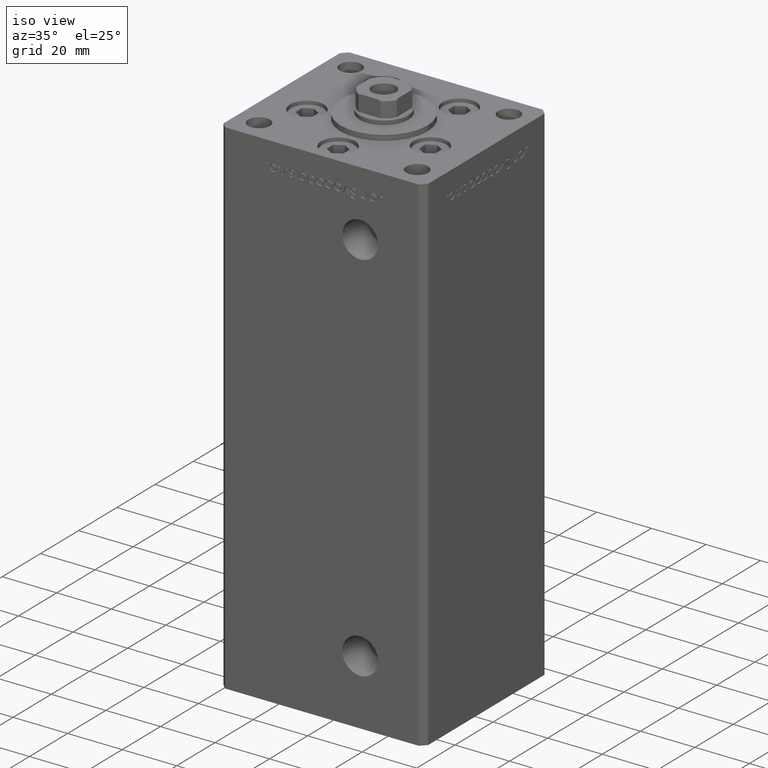
[diagram: clean part render]
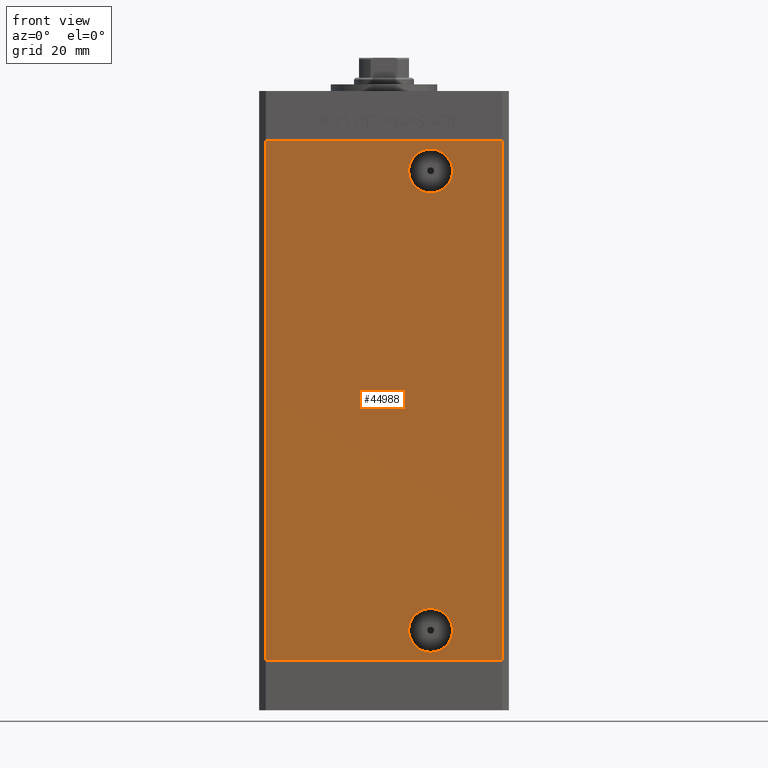
[diagram: tour spotlight — one face highlighted and labeled with its STEP entity id]
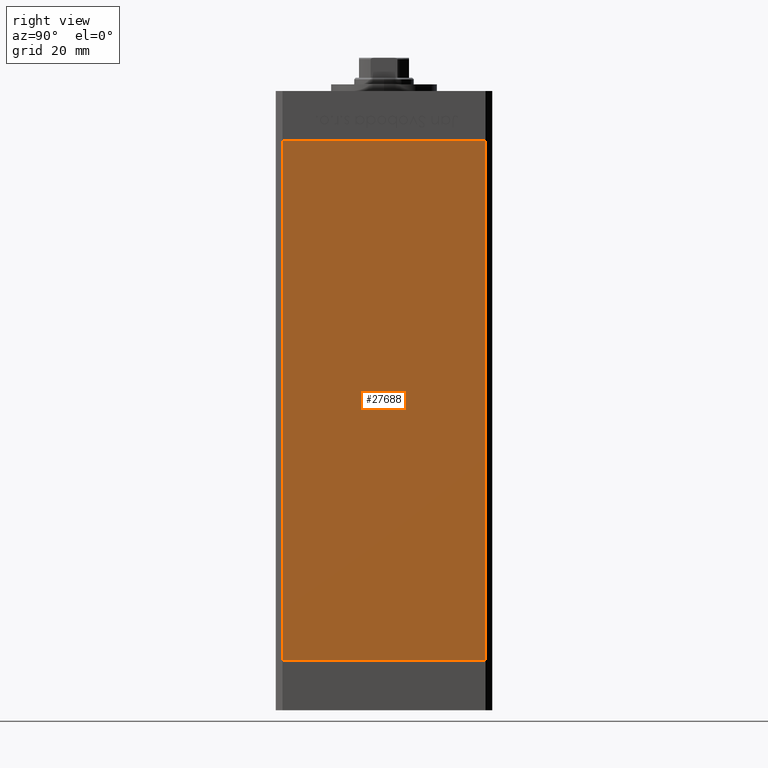
[diagram: tour spotlight — one face highlighted and labeled with its STEP entity id]
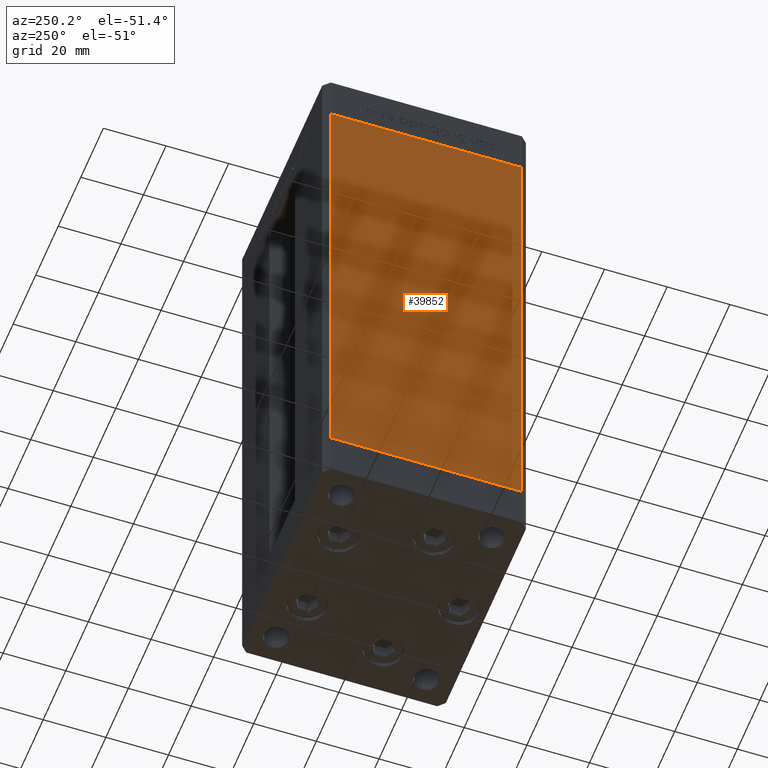
[diagram: tour spotlight — one face highlighted and labeled with its STEP entity id]
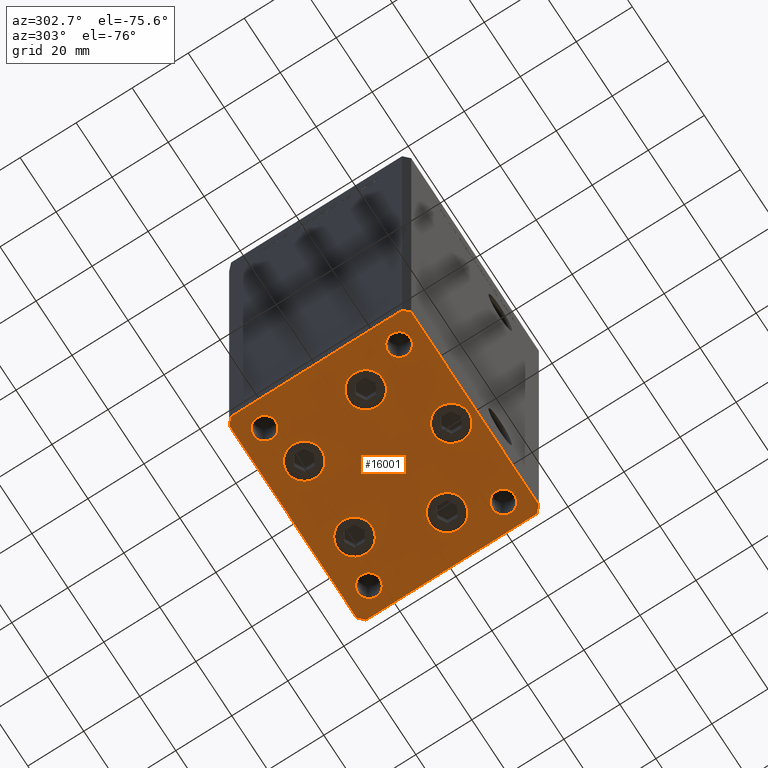
[diagram: tour spotlight — one face highlighted and labeled with its STEP entity id]
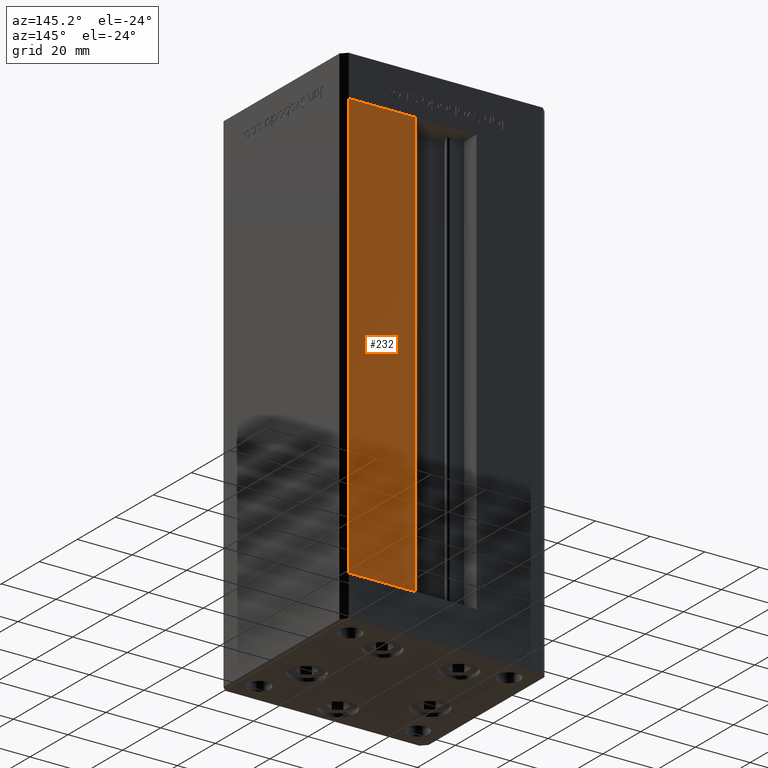
[diagram: tour spotlight — one face highlighted and labeled with its STEP entity id]
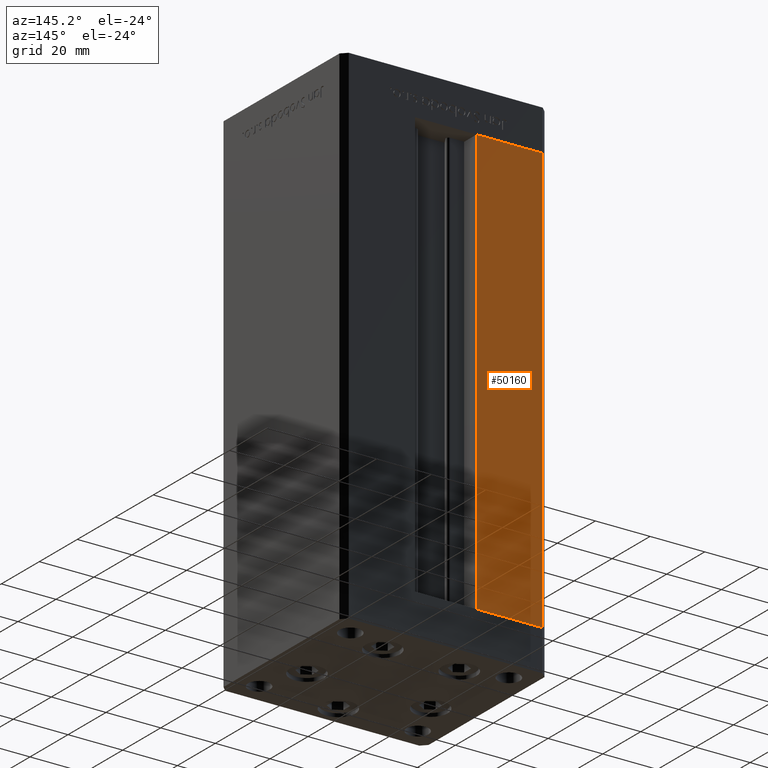
[diagram: tour spotlight — one face highlighted and labeled with its STEP entity id]
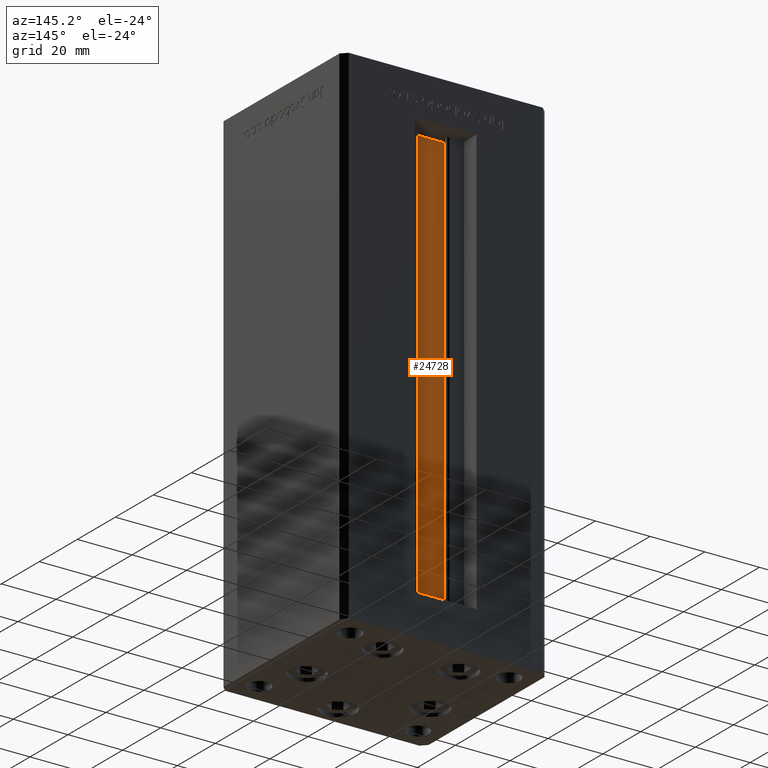
[diagram: tour spotlight — one face highlighted and labeled with its STEP entity id]
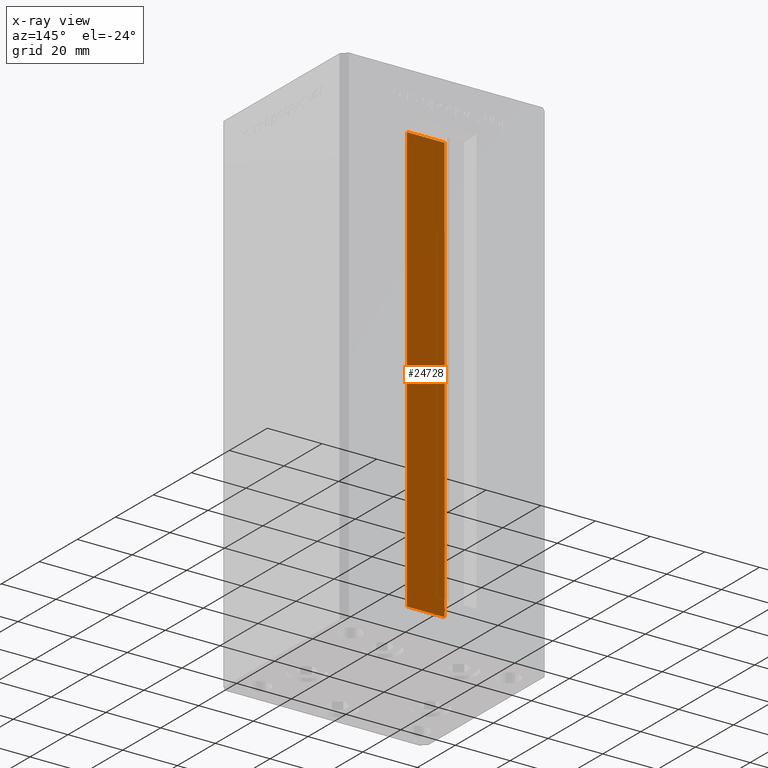
[diagram: x-ray of the same camera — body ghosted, this tour face saturated]
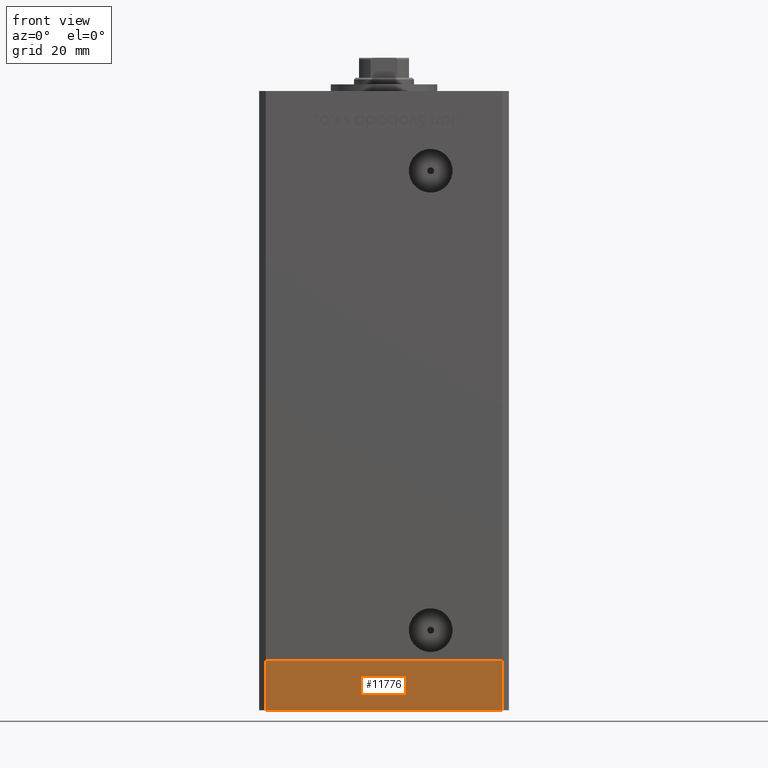
[diagram: tour spotlight — one face highlighted and labeled with its STEP entity id]
A machine part: a face-by-face anatomy tour. The part has 1183 B-rep faces; the first image is the clean iso view, then the 8 largest visible faces are spotlighted one at a time (largest first), each with its STEP entity span.

Face 1 — front view, entity #44988. In plain terms, the highlighted planar face has unit normal (0, 1, 0).
Definition (entity closure, byte-faithful):
#146 = LINE ( 'NONE', #15715, #47662 ) ;
#2794 = EDGE_CURVE ( 'NONE', #39098, #14984, #16367, .T. ) ;
#3240 = VERTEX_POINT ( 'NONE', #20134 ) ;
#3408 = CARTESIAN_POINT ( 'NONE',  ( 13.99999999999999112, -32.50000000000000000, 2.420000000000009699 ) ) ;
#3900 = CARTESIAN_POINT ( 'NONE',  ( 35.49999999999999289, -32.50000000000000000, 156.0000000000000000 ) ) ;
#3906 = CARTESIAN_POINT ( 'NONE',  ( -35.49999999999999289, -32.50000000000000000, 156.0000000000000000 ) ) ;
#3954 = CARTESIAN_POINT ( 'NONE',  ( -35.49999999999999289, -32.50000000000000000, 156.0000000000000000 ) ) ;
#4794 = CARTESIAN_POINT ( 'NONE',  ( 35.49999999999999289, -32.50000000000000000, 0.000000000000000000 ) ) ;
#7198 = DIRECTION ( 'NONE',  ( 0.000000000000000000, 0.000000000000000000, -1.000000000000000000 ) ) ;
#7381 = ORIENTED_EDGE ( 'NONE', *, *, #20684, .F. ) ;
#7429 = CARTESIAN_POINT ( 'NONE',  ( 13.99999999999999112, -32.50000000000000000, 15.58000000000000718 ) ) ;
#7462 = CARTESIAN_POINT ( 'NONE',  ( -35.49999999999999289, -32.50000000000000000, 0.000000000000000000 ) ) ;
#7784 = EDGE_CURVE ( 'NONE', #42378, #41797, #14210, .T. ) ;
#8537 = DIRECTION ( 'NONE',  ( 0.000000000000000000, 0.000000000000000000, -1.000000000000000000 ) ) ;
#8980 = EDGE_LOOP ( 'NONE', ( #22627, #7381, #36898, #15474 ) ) ;
#9091 = VECTOR ( 'NONE', #32144, 1000.000000000000000 ) ;
#10933 = PLANE ( 'NONE',  #34628 ) ;
#11055 = VERTEX_POINT ( 'NONE', #3900 ) ;
#11652 = AXIS2_PLACEMENT_3D ( 'NONE', #51781, #27261, #7198 ) ;
#11698 = CARTESIAN_POINT ( 'NONE',  ( -35.49999999999999289, -32.50000000000000000, 156.0000000000000000 ) ) ;
#12099 = LINE ( 'NONE', #3906, #9091 ) ;
#12451 = EDGE_CURVE ( 'NONE', #41797, #42378, #26155, .T. ) ;
#13558 = ORIENTED_EDGE ( 'NONE', *, *, #28291, .T. ) ;
#14210 = CIRCLE ( 'NONE', #11652, 6.579999999999998295 ) ;
#14984 = VERTEX_POINT ( 'NONE', #7462 ) ;
#15474 = ORIENTED_EDGE ( 'NONE', *, *, #2794, .T. ) ;
#15715 = CARTESIAN_POINT ( 'NONE',  ( -35.49999999999999289, -32.50000000000000000, 0.000000000000000000 ) ) ;
#16367 = LINE ( 'NONE', #3954, #22499 ) ;
#17714 = AXIS2_PLACEMENT_3D ( 'NONE', #19629, #44681, #8537 ) ;
#18054 = AXIS2_PLACEMENT_3D ( 'NONE', #18155, #22120, #47130 ) ;
#18155 = CARTESIAN_POINT ( 'NONE',  ( 13.99999999999997513, -32.50000000000000000, 147.0000000000000284 ) ) ;
#18245 = LINE ( 'NONE', #34336, #47286 ) ;
#19629 = CARTESIAN_POINT ( 'NONE',  ( 13.99999999999999112, -32.50000000000000000, 9.000000000000007105 ) ) ;
#20134 = CARTESIAN_POINT ( 'NONE',  ( 13.99999999999997513, -32.50000000000000000, 140.4200000000000159 ) ) ;
#20684 = EDGE_CURVE ( 'NONE', #11055, #35645, #18245, .T. ) ;
#21479 = VERTEX_POINT ( 'NONE', #30717 ) ;
#21637 = ORIENTED_EDGE ( 'NONE', *, *, #7784, .F. ) ;
#22120 = DIRECTION ( 'NONE',  ( -0.000000000000000000, 1.000000000000000000, -0.000000000000000000 ) ) ;
#22499 = VECTOR ( 'NONE', #36158, 1000.000000000000000 ) ;
#22627 = ORIENTED_EDGE ( 'NONE', *, *, #31153, .T. ) ;
#24746 = CIRCLE ( 'NONE', #29806, 6.580000000000002736 ) ;
#26155 = CIRCLE ( 'NONE', #17714, 6.579999999999998295 ) ;
#26775 = FACE_OUTER_BOUND ( 'NONE', #8980, .T. ) ;
#27261 = DIRECTION ( 'NONE',  ( 0.000000000000000000, -1.000000000000000000, 0.000000000000000000 ) ) ;
#27288 = DIRECTION ( 'NONE',  ( 0.000000000000000000, -0.000000000000000000, 1.000000000000000000 ) ) ;
#27516 = EDGE_CURVE ( 'NONE', #3240, #21479, #24746, .T. ) ;
#28291 = EDGE_CURVE ( 'NONE', #21479, #3240, #35727, .T. ) ;
#29806 = AXIS2_PLACEMENT_3D ( 'NONE', #33833, #45959, #45174 ) ;
#30717 = CARTESIAN_POINT ( 'NONE',  ( 13.99999999999997513, -32.50000000000000000, 153.5800000000000125 ) ) ;
#31153 = EDGE_CURVE ( 'NONE', #14984, #35645, #146, .T. ) ;
#32144 = DIRECTION ( 'NONE',  ( 1.000000000000000000, 0.000000000000000000, 0.000000000000000000 ) ) ;
#33833 = CARTESIAN_POINT ( 'NONE',  ( 13.99999999999997513, -32.50000000000000000, 147.0000000000000284 ) ) ;
#34336 = CARTESIAN_POINT ( 'NONE',  ( 35.49999999999999289, -32.50000000000000000, 156.0000000000000000 ) ) ;
#34628 = AXIS2_PLACEMENT_3D ( 'NONE', #11698, #51812, #27288 ) ;
#35645 = VERTEX_POINT ( 'NONE', #4794 ) ;
#35675 = EDGE_CURVE ( 'NONE', #39098, #11055, #12099, .T. ) ;
#35727 = CIRCLE ( 'NONE', #18054, 6.580000000000002736 ) ;
#35776 = DIRECTION ( 'NONE',  ( 1.000000000000000000, 0.000000000000000000, 0.000000000000000000 ) ) ;
#35987 = ORIENTED_EDGE ( 'NONE', *, *, #12451, .F. ) ;
#36158 = DIRECTION ( 'NONE',  ( -0.000000000000000000, -0.000000000000000000, -1.000000000000000000 ) ) ;
#36236 = CARTESIAN_POINT ( 'NONE',  ( -35.49999999999999289, -32.50000000000000000, 156.0000000000000000 ) ) ;
#36399 = DIRECTION ( 'NONE',  ( -0.000000000000000000, -0.000000000000000000, -1.000000000000000000 ) ) ;
#36898 = ORIENTED_EDGE ( 'NONE', *, *, #35675, .F. ) ;
#39098 = VERTEX_POINT ( 'NONE', #36236 ) ;
#40181 = ORIENTED_EDGE ( 'NONE', *, *, #27516, .T. ) ;
#41797 = VERTEX_POINT ( 'NONE', #3408 ) ;
#42378 = VERTEX_POINT ( 'NONE', #7429 ) ;
#42869 = FACE_BOUND ( 'NONE', #49176, .T. ) ;
#44681 = DIRECTION ( 'NONE',  ( 0.000000000000000000, -1.000000000000000000, 0.000000000000000000 ) ) ;
#44988 = ADVANCED_FACE ( 'NONE', ( #51034, #26775, #42869 ), #10933, .F. ) ;
#45174 = DIRECTION ( 'NONE',  ( 0.000000000000000000, 0.000000000000000000, -1.000000000000000000 ) ) ;
#45959 = DIRECTION ( 'NONE',  ( -0.000000000000000000, 1.000000000000000000, -0.000000000000000000 ) ) ;
#47130 = DIRECTION ( 'NONE',  ( 0.000000000000000000, 0.000000000000000000, -1.000000000000000000 ) ) ;
#47286 = VECTOR ( 'NONE', #36399, 1000.000000000000000 ) ;
#47662 = VECTOR ( 'NONE', #35776, 1000.000000000000000 ) ;
#49176 = EDGE_LOOP ( 'NONE', ( #40181, #13558 ) ) ;
#49281 = EDGE_LOOP ( 'NONE', ( #35987, #21637 ) ) ;
#51034 = FACE_BOUND ( 'NONE', #49281, .T. ) ;
#51781 = CARTESIAN_POINT ( 'NONE',  ( 13.99999999999999112, -32.50000000000000000, 9.000000000000007105 ) ) ;
#51812 = DIRECTION ( 'NONE',  ( 0.000000000000000000, 1.000000000000000000, 0.000000000000000000 ) ) ;

Face 2 — right view, entity #27688. In plain terms, the highlighted planar face has unit normal (1, -0, 0).
Definition (entity closure, byte-faithful):
#204 = LINE ( 'NONE', #24484, #22020 ) ;
#3171 = VERTEX_POINT ( 'NONE', #23572 ) ;
#7399 = VECTOR ( 'NONE', #34577, 1000.000000000000000 ) ;
#7525 = ORIENTED_EDGE ( 'NONE', *, *, #34985, .F. ) ;
#8699 = CARTESIAN_POINT ( 'NONE',  ( 37.49999999999999289, -30.50000000000000000, 156.0000000000000000 ) ) ;
#10466 = AXIS2_PLACEMENT_3D ( 'NONE', #11870, #47735, #20044 ) ;
#11870 = CARTESIAN_POINT ( 'NONE',  ( 37.50000000000000711, 30.50000000000000000, 156.0000000000000000 ) ) ;
#12135 = PLANE ( 'NONE',  #10466 ) ;
#13438 = DIRECTION ( 'NONE',  ( -0.000000000000000000, -0.000000000000000000, -1.000000000000000000 ) ) ;
#14378 = EDGE_CURVE ( 'NONE', #41176, #42685, #204, .T. ) ;
#17076 = CARTESIAN_POINT ( 'NONE',  ( 37.50000000000000711, 30.50000000000000000, 156.0000000000000000 ) ) ;
#18486 = CARTESIAN_POINT ( 'NONE',  ( 37.50000000000000711, 30.50000000000000000, 0.000000000000000000 ) ) ;
#20044 = DIRECTION ( 'NONE',  ( 2.275047181608927644E-16, 1.000000000000000000, 0.000000000000000000 ) ) ;
#21028 = LINE ( 'NONE', #17076, #39513 ) ;
#22020 = VECTOR ( 'NONE', #37427, 1000.000000000000000 ) ;
#23457 = ORIENTED_EDGE ( 'NONE', *, *, #32763, .F. ) ;
#23572 = CARTESIAN_POINT ( 'NONE',  ( 37.49999999999999289, -30.50000000000000000, 0.000000000000000000 ) ) ;
#24189 = DIRECTION ( 'NONE',  ( -0.000000000000000000, -0.000000000000000000, -1.000000000000000000 ) ) ;
#24355 = EDGE_CURVE ( 'NONE', #42685, #3171, #45361, .T. ) ;
#24484 = CARTESIAN_POINT ( 'NONE',  ( 37.50000000000000711, 30.50000000000000000, 156.0000000000000000 ) ) ;
#27688 = ADVANCED_FACE ( 'NONE', ( #36142 ), #12135, .T. ) ;
#30601 = ORIENTED_EDGE ( 'NONE', *, *, #24355, .T. ) ;
#32763 = EDGE_CURVE ( 'NONE', #51354, #3171, #42998, .T. ) ;
#34577 = DIRECTION ( 'NONE',  ( -2.275047181608927644E-16, -1.000000000000000000, 0.000000000000000000 ) ) ;
#34985 = EDGE_CURVE ( 'NONE', #41176, #51354, #21028, .T. ) ;
#35939 = CARTESIAN_POINT ( 'NONE',  ( 37.50000000000000711, 30.50000000000000000, 0.000000000000000000 ) ) ;
#36142 = FACE_OUTER_BOUND ( 'NONE', #47909, .T. ) ;
#36281 = ORIENTED_EDGE ( 'NONE', *, *, #14378, .T. ) ;
#37057 = CARTESIAN_POINT ( 'NONE',  ( 37.50000000000000711, 30.50000000000000000, 156.0000000000000000 ) ) ;
#37427 = DIRECTION ( 'NONE',  ( -2.275047181608927644E-16, -1.000000000000000000, 0.000000000000000000 ) ) ;
#39513 = VECTOR ( 'NONE', #24189, 1000.000000000000000 ) ;
#40361 = CARTESIAN_POINT ( 'NONE',  ( 37.49999999999999289, -30.50000000000000000, 156.0000000000000000 ) ) ;
#41176 = VERTEX_POINT ( 'NONE', #37057 ) ;
#41513 = VECTOR ( 'NONE', #13438, 1000.000000000000000 ) ;
#42685 = VERTEX_POINT ( 'NONE', #40361 ) ;
#42998 = LINE ( 'NONE', #18486, #7399 ) ;
#45361 = LINE ( 'NONE', #8699, #41513 ) ;
#47735 = DIRECTION ( 'NONE',  ( 1.000000000000000000, -2.275047181608927644E-16, 0.000000000000000000 ) ) ;
#47909 = EDGE_LOOP ( 'NONE', ( #23457, #7525, #36281, #30601 ) ) ;
#51354 = VERTEX_POINT ( 'NONE', #35939 ) ;

Face 3 — auxiliary view, entity #39852. In plain terms, the highlighted planar face has unit normal (1, 0, 0).
Definition (entity closure, byte-faithful):
#776 = CARTESIAN_POINT ( 'NONE',  ( -37.49999999999999289, -30.50000000000000000, 156.0000000000000000 ) ) ;
#1664 = LINE ( 'NONE', #50463, #27292 ) ;
#3557 = VECTOR ( 'NONE', #9715, 1000.000000000000000 ) ;
#5154 = LINE ( 'NONE', #33140, #17716 ) ;
#7233 = DIRECTION ( 'NONE',  ( -2.275047181608927644E-16, 1.000000000000000000, 0.000000000000000000 ) ) ;
#8791 = CARTESIAN_POINT ( 'NONE',  ( -37.50000000000000711, 30.50000000000000000, 156.0000000000000000 ) ) ;
#9715 = DIRECTION ( 'NONE',  ( 2.275047181608927644E-16, -1.000000000000000000, 0.000000000000000000 ) ) ;
#11470 = CARTESIAN_POINT ( 'NONE',  ( -37.49999999999999289, -30.50000000000000000, 0.000000000000000000 ) ) ;
#14018 = CARTESIAN_POINT ( 'NONE',  ( -37.50000000000000711, 30.50000000000000000, 156.0000000000000000 ) ) ;
#15669 = FACE_OUTER_BOUND ( 'NONE', #30299, .T. ) ;
#17716 = VECTOR ( 'NONE', #37627, 1000.000000000000000 ) ;
#18874 = PLANE ( 'NONE',  #22684 ) ;
#19220 = EDGE_CURVE ( 'NONE', #30130, #21914, #24882, .T. ) ;
#20188 = CARTESIAN_POINT ( 'NONE',  ( -37.50000000000000711, 30.50000000000000000, 0.000000000000000000 ) ) ;
#20857 = VERTEX_POINT ( 'NONE', #776 ) ;
#21271 = ORIENTED_EDGE ( 'NONE', *, *, #27985, .T. ) ;
#21914 = VERTEX_POINT ( 'NONE', #20188 ) ;
#22126 = LINE ( 'NONE', #34515, #3557 ) ;
#22574 = CARTESIAN_POINT ( 'NONE',  ( -37.50000000000000711, 30.50000000000000000, 156.0000000000000000 ) ) ;
#22684 = AXIS2_PLACEMENT_3D ( 'NONE', #22574, #31764, #7233 ) ;
#22699 = EDGE_CURVE ( 'NONE', #30130, #20857, #22126, .T. ) ;
#24819 = VERTEX_POINT ( 'NONE', #11470 ) ;
#24882 = LINE ( 'NONE', #8791, #34664 ) ;
#27292 = VECTOR ( 'NONE', #37826, 1000.000000000000000 ) ;
#27985 = EDGE_CURVE ( 'NONE', #21914, #24819, #1664, .T. ) ;
#30130 = VERTEX_POINT ( 'NONE', #14018 ) ;
#30299 = EDGE_LOOP ( 'NONE', ( #21271, #33001, #46799, #39305 ) ) ;
#31764 = DIRECTION ( 'NONE',  ( 1.000000000000000000, 2.275047181608927644E-16, -0.000000000000000000 ) ) ;
#33001 = ORIENTED_EDGE ( 'NONE', *, *, #44063, .F. ) ;
#33140 = CARTESIAN_POINT ( 'NONE',  ( -37.49999999999999289, -30.50000000000000000, 156.0000000000000000 ) ) ;
#34515 = CARTESIAN_POINT ( 'NONE',  ( -37.50000000000000711, 30.50000000000000000, 156.0000000000000000 ) ) ;
#34664 = VECTOR ( 'NONE', #40979, 1000.000000000000000 ) ;
#37627 = DIRECTION ( 'NONE',  ( -0.000000000000000000, -0.000000000000000000, -1.000000000000000000 ) ) ;
#37826 = DIRECTION ( 'NONE',  ( 2.275047181608927644E-16, -1.000000000000000000, 0.000000000000000000 ) ) ;
#39305 = ORIENTED_EDGE ( 'NONE', *, *, #19220, .T. ) ;
#39852 = ADVANCED_FACE ( 'NONE', ( #15669 ), #18874, .F. ) ;
#40979 = DIRECTION ( 'NONE',  ( -0.000000000000000000, -0.000000000000000000, -1.000000000000000000 ) ) ;
#44063 = EDGE_CURVE ( 'NONE', #20857, #24819, #5154, .T. ) ;
#46799 = ORIENTED_EDGE ( 'NONE', *, *, #22699, .F. ) ;
#50463 = CARTESIAN_POINT ( 'NONE',  ( -37.50000000000000711, 30.50000000000000000, 0.000000000000000000 ) ) ;

Face 4 — auxiliary view, entity #16001. In plain terms, the highlighted planar face has unit normal (0, 0, -1).
Definition (entity closure, byte-faithful):
#672 = VECTOR ( 'NONE', #16051, 1000.000000000000000 ) ;
#688 = VERTEX_POINT ( 'NONE', #28754 ) ;
#962 = CARTESIAN_POINT ( 'NONE',  ( -22.62741699796951877, -8.000000000000005329, 0.000000000000000000 ) ) ;
#1638 = ORIENTED_EDGE ( 'NONE', *, *, #35491, .T. ) ;
#1705 = AXIS2_PLACEMENT_3D ( 'NONE', #4235, #39357, #19811 ) ;
#1743 = VERTEX_POINT ( 'NONE', #50444 ) ;
#1932 = AXIS2_PLACEMENT_3D ( 'NONE', #17278, #41556, #33628 ) ;
#2753 = FACE_BOUND ( 'NONE', #36098, .T. ) ;
#2889 = CARTESIAN_POINT ( 'NONE',  ( 29.00000000000001066, -23.99999999999999289, 0.000000000000000000 ) ) ;
#2982 = VERTEX_POINT ( 'NONE', #48218 ) ;
#3103 = VERTEX_POINT ( 'NONE', #21326 ) ;
#3516 = PLANE ( 'NONE',  #49715 ) ;
#3907 = ORIENTED_EDGE ( 'NONE', *, *, #5199, .T. ) ;
#3994 = DIRECTION ( 'NONE',  ( 0.000000000000000000, -0.000000000000000000, -1.000000000000000000 ) ) ;
#4235 = CARTESIAN_POINT ( 'NONE',  ( -29.00000000000001066, 24.00000000000000711, 0.000000000000000000 ) ) ;
#4482 = VERTEX_POINT ( 'NONE', #44830 ) ;
#4628 = CARTESIAN_POINT ( 'NONE',  ( -37.50000000000001421, 30.49999999999998579, 0.000000000000000000 ) ) ;
#5057 = EDGE_CURVE ( 'NONE', #29113, #2982, #39400, .T. ) ;
#5199 = EDGE_CURVE ( 'NONE', #20625, #45518, #37757, .T. ) ;
#5273 = CIRCLE ( 'NONE', #27186, 4.000000000000000000 ) ;
#5278 = VERTEX_POINT ( 'NONE', #36669 ) ;
#5820 = CARTESIAN_POINT ( 'NONE',  ( 16.37741699796951877, -8.000000000000000000, 0.000000000000000000 ) ) ;
#6357 = CARTESIAN_POINT ( 'NONE',  ( -33.00000000000000711, -23.99999999999999289, 0.000000000000000000 ) ) ;
#6540 = EDGE_CURVE ( 'NONE', #43367, #5278, #9985, .T. ) ;
#6551 = AXIS2_PLACEMENT_3D ( 'NONE', #25051, #8421, #29011 ) ;
#7215 = FACE_BOUND ( 'NONE', #51779, .T. ) ;
#7245 = EDGE_CURVE ( 'NONE', #39946, #4482, #10272, .T. ) ;
#7324 = DIRECTION ( 'NONE',  ( 0.7071067811865487940, 0.7071067811865463515, 0.000000000000000000 ) ) ;
#7457 = ORIENTED_EDGE ( 'NONE', *, *, #6540, .T. ) ;
#7472 = DIRECTION ( 'NONE',  ( -0.000000000000000000, 0.000000000000000000, 1.000000000000000000 ) ) ;
#7781 = CIRCLE ( 'NONE', #1932, 3.999999999999996447 ) ;
#7874 = CARTESIAN_POINT ( 'NONE',  ( 37.50000000000001421, -30.50000000000000711, 0.000000000000000000 ) ) ;
#8377 = EDGE_CURVE ( 'NONE', #39598, #15791, #50373, .T. ) ;
#8421 = DIRECTION ( 'NONE',  ( 0.000000000000000000, -0.000000000000000000, -1.000000000000000000 ) ) ;
#8554 = ORIENTED_EDGE ( 'NONE', *, *, #9529, .T. ) ;
#8727 = ORIENTED_EDGE ( 'NONE', *, *, #9051, .F. ) ;
#9051 = EDGE_CURVE ( 'NONE', #31037, #12083, #34477, .T. ) ;
#9193 = VECTOR ( 'NONE', #7324, 1000.000000000000000 ) ;
#9362 = VERTEX_POINT ( 'NONE', #42715 ) ;
#9450 = CIRCLE ( 'NONE', #17068, 6.250000000000000000 ) ;
#9504 = VERTEX_POINT ( 'NONE', #35823 ) ;
#9529 = EDGE_CURVE ( 'NONE', #4482, #9362, #52177, .T. ) ;
#9885 = ORIENTED_EDGE ( 'NONE', *, *, #32159, .T. ) ;
#9985 = CIRCLE ( 'NONE', #49566, 4.000000000000000000 ) ;
#10272 = LINE ( 'NONE', #45890, #36073 ) ;
#10927 = FACE_BOUND ( 'NONE', #27160, .T. ) ;
#11097 = CIRCLE ( 'NONE', #26300, 6.250000000000000000 ) ;
#11276 = DIRECTION ( 'NONE',  ( 1.000000000000000000, 0.000000000000000000, 0.000000000000000000 ) ) ;
#11830 = EDGE_CURVE ( 'NONE', #14258, #49138, #52230, .T. ) ;
#12083 = VERTEX_POINT ( 'NONE', #47128 ) ;
#12088 = VERTEX_POINT ( 'NONE', #36042 ) ;
#12632 = LINE ( 'NONE', #32951, #39438 ) ;
#12771 = AXIS2_PLACEMENT_3D ( 'NONE', #41764, #33066, #20399 ) ;
#12841 = CARTESIAN_POINT ( 'NONE',  ( -28.87741699796952233, -8.000000000000005329, 0.000000000000000000 ) ) ;
#12936 = EDGE_CURVE ( 'NONE', #3103, #688, #26192, .T. ) ;
#13260 = CARTESIAN_POINT ( 'NONE',  ( 2.939152317953647500E-15, -24.00000000000000000, 0.000000000000000000 ) ) ;
#13497 = AXIS2_PLACEMENT_3D ( 'NONE', #962, #21804, #33411 ) ;
#13502 = DIRECTION ( 'NONE',  ( 0.000000000000000000, -0.000000000000000000, -1.000000000000000000 ) ) ;
#13671 = CIRCLE ( 'NONE', #27963, 4.000000000000003553 ) ;
#14072 = CARTESIAN_POINT ( 'NONE',  ( 13.99106857963322348, 19.50000000000000000, 0.000000000000000000 ) ) ;
#14258 = VERTEX_POINT ( 'NONE', #40824 ) ;
#14434 = VERTEX_POINT ( 'NONE', #33448 ) ;
#14453 = ORIENTED_EDGE ( 'NONE', *, *, #34313, .T. ) ;
#14902 = DIRECTION ( 'NONE',  ( 0.7071067811865474617, -0.7071067811865474617, 0.000000000000000000 ) ) ;
#15294 = CARTESIAN_POINT ( 'NONE',  ( 20.24106857963322526, 19.50000000000000000, 0.000000000000000000 ) ) ;
#15494 = VECTOR ( 'NONE', #30654, 1000.000000000000000 ) ;
#15791 = VERTEX_POINT ( 'NONE', #4628 ) ;
#16001 = ADVANCED_FACE ( 'NONE', ( #2753, #10927, #35716, #27526, #35197, #7215, #51282, #19357, #35456, #43613 ), #3516, .T. ) ;
#16051 = DIRECTION ( 'NONE',  ( -1.478780668045802821E-15, 1.000000000000000000, 0.000000000000000000 ) ) ;
#16248 = AXIS2_PLACEMENT_3D ( 'NONE', #31323, #35284, #30821 ) ;
#16728 = CARTESIAN_POINT ( 'NONE',  ( -35.49999999999998579, -32.50000000000001421, 0.000000000000000000 ) ) ;
#16761 = VECTOR ( 'NONE', #30600, 1000.000000000000000 ) ;
#16763 = AXIS2_PLACEMENT_3D ( 'NONE', #32553, #48899, #19898 ) ;
#16857 = CARTESIAN_POINT ( 'NONE',  ( -6.249999999999997335, -24.00000000000000000, 0.000000000000000000 ) ) ;
#17067 = EDGE_LOOP ( 'NONE', ( #14453, #47893, #8554, #50310, #9885, #34400, #22694, #28224 ) ) ;
#17068 = AXIS2_PLACEMENT_3D ( 'NONE', #13260, #40714, #41500 ) ;
#17278 = CARTESIAN_POINT ( 'NONE',  ( -29.00000000000001066, 24.00000000000000711, 0.000000000000000000 ) ) ;
#17570 = EDGE_LOOP ( 'NONE', ( #33562, #45181 ) ) ;
#17969 = DIRECTION ( 'NONE',  ( 1.000000000000000000, 0.000000000000000000, 0.000000000000000000 ) ) ;
#19224 = EDGE_CURVE ( 'NONE', #9504, #49128, #31289, .T. ) ;
#19240 = VECTOR ( 'NONE', #14902, 1000.000000000000114 ) ;
#19357 = FACE_BOUND ( 'NONE', #17570, .T. ) ;
#19418 = AXIS2_PLACEMENT_3D ( 'NONE', #2889, #51163, #17969 ) ;
#19811 = DIRECTION ( 'NONE',  ( 1.000000000000000000, 0.000000000000000000, 0.000000000000000000 ) ) ;
#19898 = DIRECTION ( 'NONE',  ( 1.000000000000000000, 0.000000000000000000, 0.000000000000000000 ) ) ;
#20013 = ORIENTED_EDGE ( 'NONE', *, *, #23058, .T. ) ;
#20249 = DIRECTION ( 'NONE',  ( 1.000000000000000000, 0.000000000000000000, 0.000000000000000000 ) ) ;
#20290 = ORIENTED_EDGE ( 'NONE', *, *, #5057, .T. ) ;
#20373 = CARTESIAN_POINT ( 'NONE',  ( -22.62741699796951877, -8.000000000000005329, 0.000000000000000000 ) ) ;
#20399 = DIRECTION ( 'NONE',  ( 1.000000000000000000, 0.000000000000000000, 0.000000000000000000 ) ) ;
#20625 = VERTEX_POINT ( 'NONE', #15294 ) ;
#20996 = CIRCLE ( 'NONE', #43598, 6.250000000000001776 ) ;
#21067 = VECTOR ( 'NONE', #47207, 1000.000000000000000 ) ;
#21326 = CARTESIAN_POINT ( 'NONE',  ( 25.00000000000000711, -23.99999999999999289, 0.000000000000000000 ) ) ;
#21343 = DIRECTION ( 'NONE',  ( -0.7071067811865482389, 0.7071067811865469066, 0.000000000000000000 ) ) ;
#21750 = AXIS2_PLACEMENT_3D ( 'NONE', #26422, #13502, #50419 ) ;
#21755 = EDGE_CURVE ( 'NONE', #38327, #36630, #11097, .T. ) ;
#21804 = DIRECTION ( 'NONE',  ( 0.000000000000000000, -0.000000000000000000, -1.000000000000000000 ) ) ;
#21840 = ORIENTED_EDGE ( 'NONE', *, *, #25935, .F. ) ;
#22226 = DIRECTION ( 'NONE',  ( -0.000000000000000000, 0.000000000000000000, 1.000000000000000000 ) ) ;
#22304 = EDGE_CURVE ( 'NONE', #688, #3103, #13671, .T. ) ;
#22305 = EDGE_CURVE ( 'NONE', #49128, #9504, #9450, .T. ) ;
#22415 = ORIENTED_EDGE ( 'NONE', *, *, #12936, .T. ) ;
#22694 = ORIENTED_EDGE ( 'NONE', *, *, #8377, .T. ) ;
#22990 = CARTESIAN_POINT ( 'NONE',  ( 29.00000000000001066, 24.00000000000000711, 0.000000000000000000 ) ) ;
#23058 = EDGE_CURVE ( 'NONE', #45518, #20625, #23786, .T. ) ;
#23078 = ORIENTED_EDGE ( 'NONE', *, *, #24552, .T. ) ;
#23233 = CARTESIAN_POINT ( 'NONE',  ( 35.49999999999992184, 32.50000000000000711, 0.000000000000000000 ) ) ;
#23577 = DIRECTION ( 'NONE',  ( 1.000000000000000000, 0.000000000000000000, 0.000000000000000000 ) ) ;
#23786 = CIRCLE ( 'NONE', #31355, 6.250000000000000000 ) ;
#24552 = EDGE_CURVE ( 'NONE', #5278, #43367, #5273, .T. ) ;
#25051 = CARTESIAN_POINT ( 'NONE',  ( 13.99106857963322348, 19.50000000000000000, 0.000000000000000000 ) ) ;
#25935 = EDGE_CURVE ( 'NONE', #12083, #31037, #28922, .T. ) ;
#26179 = DIRECTION ( 'NONE',  ( 1.000000000000000000, 0.000000000000000000, 0.000000000000000000 ) ) ;
#26192 = CIRCLE ( 'NONE', #19418, 4.000000000000003553 ) ;
#26300 = AXIS2_PLACEMENT_3D ( 'NONE', #40573, #32642, #20249 ) ;
#26422 = CARTESIAN_POINT ( 'NONE',  ( 22.62741699796951877, -8.000000000000000000, 0.000000000000000000 ) ) ;
#26864 = AXIS2_PLACEMENT_3D ( 'NONE', #32555, #48632, #32829 ) ;
#27045 = CARTESIAN_POINT ( 'NONE',  ( -37.49999999999998579, -30.50000000000001421, 0.000000000000000000 ) ) ;
#27160 = EDGE_LOOP ( 'NONE', ( #20013, #3907 ) ) ;
#27186 = AXIS2_PLACEMENT_3D ( 'NONE', #44239, #47414, #11276 ) ;
#27526 = FACE_BOUND ( 'NONE', #35065, .T. ) ;
#27564 = EDGE_CURVE ( 'NONE', #41323, #39598, #45438, .T. ) ;
#27806 = ORIENTED_EDGE ( 'NONE', *, *, #22305, .T. ) ;
#27863 = VERTEX_POINT ( 'NONE', #12841 ) ;
#27904 = CARTESIAN_POINT ( 'NONE',  ( 35.50000000000000711, -32.50000000000000711, 0.000000000000000000 ) ) ;
#27963 = AXIS2_PLACEMENT_3D ( 'NONE', #36749, #37294, #49393 ) ;
#28224 = ORIENTED_EDGE ( 'NONE', *, *, #41782, .T. ) ;
#28754 = CARTESIAN_POINT ( 'NONE',  ( 33.00000000000001421, -23.99999999999999289, 0.000000000000000000 ) ) ;
#28922 = CIRCLE ( 'NONE', #16248, 4.000000000000003553 ) ;
#29011 = DIRECTION ( 'NONE',  ( 1.000000000000000000, 0.000000000000000000, 0.000000000000000000 ) ) ;
#29046 = ORIENTED_EDGE ( 'NONE', *, *, #41935, .T. ) ;
#29113 = VERTEX_POINT ( 'NONE', #5820 ) ;
#29156 = ORIENTED_EDGE ( 'NONE', *, *, #39915, .T. ) ;
#30333 = CARTESIAN_POINT ( 'NONE',  ( -35.50000000000002842, 32.49999999999999289, 0.000000000000000000 ) ) ;
#30430 = DIRECTION ( 'NONE',  ( 1.000000000000000000, 0.000000000000000000, 0.000000000000000000 ) ) ;
#30600 = DIRECTION ( 'NONE',  ( -0.7071067811865426878, -0.7071067811865524577, 0.000000000000000000 ) ) ;
#30654 = DIRECTION ( 'NONE',  ( -1.000000000000000000, -1.954618001100629052E-16, 0.000000000000000000 ) ) ;
#30821 = DIRECTION ( 'NONE',  ( 1.000000000000000000, 0.000000000000000000, 0.000000000000000000 ) ) ;
#31037 = VERTEX_POINT ( 'NONE', #45394 ) ;
#31289 = CIRCLE ( 'NONE', #12771, 6.250000000000000000 ) ;
#31323 = CARTESIAN_POINT ( 'NONE',  ( 29.00000000000001066, 24.00000000000000711, 0.000000000000000000 ) ) ;
#31355 = AXIS2_PLACEMENT_3D ( 'NONE', #14072, #50211, #30430 ) ;
#32047 = DIRECTION ( 'NONE',  ( 1.000000000000000000, 0.000000000000000000, 0.000000000000000000 ) ) ;
#32055 = EDGE_CURVE ( 'NONE', #9362, #1743, #51156, .T. ) ;
#32159 = EDGE_CURVE ( 'NONE', #1743, #41323, #12632, .T. ) ;
#32553 = CARTESIAN_POINT ( 'NONE',  ( -13.99106857963322703, 19.49999999999999645, 0.000000000000000000 ) ) ;
#32555 = CARTESIAN_POINT ( 'NONE',  ( 22.62741699796951877, -8.000000000000000000, 0.000000000000000000 ) ) ;
#32642 = DIRECTION ( 'NONE',  ( 0.000000000000000000, -0.000000000000000000, -1.000000000000000000 ) ) ;
#32829 = DIRECTION ( 'NONE',  ( 1.000000000000000000, 0.000000000000000000, 0.000000000000000000 ) ) ;
#32951 = CARTESIAN_POINT ( 'NONE',  ( 37.49999999999992184, 30.50000000000001066, 0.000000000000000000 ) ) ;
#33066 = DIRECTION ( 'NONE',  ( 0.000000000000000000, -0.000000000000000000, -1.000000000000000000 ) ) ;
#33411 = DIRECTION ( 'NONE',  ( 1.000000000000000000, 0.000000000000000000, 0.000000000000000000 ) ) ;
#33448 = CARTESIAN_POINT ( 'NONE',  ( -16.37741699796951877, -8.000000000000005329, 0.000000000000000000 ) ) ;
#33562 = ORIENTED_EDGE ( 'NONE', *, *, #11830, .F. ) ;
#33628 = DIRECTION ( 'NONE',  ( 1.000000000000000000, 0.000000000000000000, 0.000000000000000000 ) ) ;
#34313 = EDGE_CURVE ( 'NONE', #12088, #39946, #38944, .T. ) ;
#34400 = ORIENTED_EDGE ( 'NONE', *, *, #27564, .T. ) ;
#34406 = EDGE_CURVE ( 'NONE', #2982, #29113, #42015, .T. ) ;
#34477 = CIRCLE ( 'NONE', #39542, 4.000000000000003553 ) ;
#35065 = EDGE_LOOP ( 'NONE', ( #27806, #48931 ) ) ;
#35197 = FACE_BOUND ( 'NONE', #44197, .T. ) ;
#35284 = DIRECTION ( 'NONE',  ( -0.000000000000000000, 0.000000000000000000, 1.000000000000000000 ) ) ;
#35362 = CIRCLE ( 'NONE', #13497, 6.250000000000001776 ) ;
#35456 = FACE_OUTER_BOUND ( 'NONE', #17067, .T. ) ;
#35491 = EDGE_CURVE ( 'NONE', #27863, #14434, #20996, .T. ) ;
#35716 = FACE_BOUND ( 'NONE', #44215, .T. ) ;
#35823 = CARTESIAN_POINT ( 'NONE',  ( 6.250000000000002665, -24.00000000000000000, 0.000000000000000000 ) ) ;
#36007 = CARTESIAN_POINT ( 'NONE',  ( -29.00000000000001066, -23.99999999999999289, 0.000000000000000000 ) ) ;
#36042 = CARTESIAN_POINT ( 'NONE',  ( -37.49999999999998579, -30.50000000000001421, 0.000000000000000000 ) ) ;
#36073 = VECTOR ( 'NONE', #49582, 1000.000000000000000 ) ;
#36098 = EDGE_LOOP ( 'NONE', ( #29156, #45954 ) ) ;
#36470 = DIRECTION ( 'NONE',  ( 1.000000000000000000, 0.000000000000000000, 0.000000000000000000 ) ) ;
#36630 = VERTEX_POINT ( 'NONE', #37258 ) ;
#36669 = CARTESIAN_POINT ( 'NONE',  ( -25.00000000000001066, -23.99999999999999289, 0.000000000000000000 ) ) ;
#36749 = CARTESIAN_POINT ( 'NONE',  ( 29.00000000000001066, -23.99999999999999289, 0.000000000000000000 ) ) ;
#37258 = CARTESIAN_POINT ( 'NONE',  ( -20.24106857963322881, 19.49999999999999645, 0.000000000000000000 ) ) ;
#37294 = DIRECTION ( 'NONE',  ( 0.000000000000000000, -0.000000000000000000, -1.000000000000000000 ) ) ;
#37757 = CIRCLE ( 'NONE', #6551, 6.250000000000000000 ) ;
#38327 = VERTEX_POINT ( 'NONE', #50172 ) ;
#38944 = LINE ( 'NONE', #27045, #19240 ) ;
#39357 = DIRECTION ( 'NONE',  ( -0.000000000000000000, 0.000000000000000000, 1.000000000000000000 ) ) ;
#39400 = CIRCLE ( 'NONE', #21750, 6.250000000000001776 ) ;
#39438 = VECTOR ( 'NONE', #21343, 999.9999999999998863 ) ;
#39542 = AXIS2_PLACEMENT_3D ( 'NONE', #22990, #22226, #26179 ) ;
#39568 = LINE ( 'NONE', #47464, #21067 ) ;
#39598 = VERTEX_POINT ( 'NONE', #41063 ) ;
#39915 = EDGE_CURVE ( 'NONE', #36630, #38327, #44547, .T. ) ;
#39946 = VERTEX_POINT ( 'NONE', #16728 ) ;
#40172 = EDGE_LOOP ( 'NONE', ( #45121, #22415 ) ) ;
#40573 = CARTESIAN_POINT ( 'NONE',  ( -13.99106857963322703, 19.49999999999999645, 0.000000000000000000 ) ) ;
#40714 = DIRECTION ( 'NONE',  ( 0.000000000000000000, -0.000000000000000000, -1.000000000000000000 ) ) ;
#40824 = CARTESIAN_POINT ( 'NONE',  ( -25.00000000000001421, 24.00000000000000711, 0.000000000000000000 ) ) ;
#41063 = CARTESIAN_POINT ( 'NONE',  ( -35.50000000000002842, 32.49999999999999289, 0.000000000000000000 ) ) ;
#41323 = VERTEX_POINT ( 'NONE', #50984 ) ;
#41500 = DIRECTION ( 'NONE',  ( 1.000000000000000000, 0.000000000000000000, 0.000000000000000000 ) ) ;
#41556 = DIRECTION ( 'NONE',  ( -0.000000000000000000, 0.000000000000000000, 1.000000000000000000 ) ) ;
#41764 = CARTESIAN_POINT ( 'NONE',  ( 2.939152317953647500E-15, -24.00000000000000000, 0.000000000000000000 ) ) ;
#41782 = EDGE_CURVE ( 'NONE', #15791, #12088, #39568, .T. ) ;
#41935 = EDGE_CURVE ( 'NONE', #14434, #27863, #35362, .T. ) ;
#42015 = CIRCLE ( 'NONE', #26864, 6.250000000000001776 ) ;
#42715 = CARTESIAN_POINT ( 'NONE',  ( 37.50000000000001421, -30.50000000000000711, 0.000000000000000000 ) ) ;
#43236 = ORIENTED_EDGE ( 'NONE', *, *, #34406, .T. ) ;
#43367 = VERTEX_POINT ( 'NONE', #6357 ) ;
#43598 = AXIS2_PLACEMENT_3D ( 'NONE', #20373, #3994, #36470 ) ;
#43613 = FACE_BOUND ( 'NONE', #43744, .T. ) ;
#43744 = EDGE_LOOP ( 'NONE', ( #23078, #7457 ) ) ;
#44197 = EDGE_LOOP ( 'NONE', ( #1638, #29046 ) ) ;
#44215 = EDGE_LOOP ( 'NONE', ( #20290, #43236 ) ) ;
#44239 = CARTESIAN_POINT ( 'NONE',  ( -29.00000000000001066, -23.99999999999999289, 0.000000000000000000 ) ) ;
#44547 = CIRCLE ( 'NONE', #16763, 6.250000000000000000 ) ;
#44830 = CARTESIAN_POINT ( 'NONE',  ( 35.50000000000000711, -32.50000000000000711, 0.000000000000000000 ) ) ;
#45121 = ORIENTED_EDGE ( 'NONE', *, *, #22304, .T. ) ;
#45181 = ORIENTED_EDGE ( 'NONE', *, *, #51213, .F. ) ;
#45394 = CARTESIAN_POINT ( 'NONE',  ( 33.00000000000001421, 24.00000000000000711, 0.000000000000000000 ) ) ;
#45438 = LINE ( 'NONE', #23233, #15494 ) ;
#45518 = VERTEX_POINT ( 'NONE', #46703 ) ;
#45890 = CARTESIAN_POINT ( 'NONE',  ( -35.49999999999998579, -32.50000000000001421, 0.000000000000000000 ) ) ;
#45954 = ORIENTED_EDGE ( 'NONE', *, *, #21755, .T. ) ;
#46118 = CARTESIAN_POINT ( 'NONE',  ( -33.00000000000000711, 24.00000000000000711, 0.000000000000000000 ) ) ;
#46703 = CARTESIAN_POINT ( 'NONE',  ( 7.741068579633223479, 19.50000000000000000, 0.000000000000000000 ) ) ;
#47128 = CARTESIAN_POINT ( 'NONE',  ( 25.00000000000000711, 24.00000000000000711, 0.000000000000000000 ) ) ;
#47207 = DIRECTION ( 'NONE',  ( 4.550094363217855288E-16, -1.000000000000000000, 0.000000000000000000 ) ) ;
#47414 = DIRECTION ( 'NONE',  ( 0.000000000000000000, -0.000000000000000000, -1.000000000000000000 ) ) ;
#47464 = CARTESIAN_POINT ( 'NONE',  ( -37.50000000000001421, 30.49999999999998579, 0.000000000000000000 ) ) ;
#47893 = ORIENTED_EDGE ( 'NONE', *, *, #7245, .T. ) ;
#48218 = CARTESIAN_POINT ( 'NONE',  ( 28.87741699796952233, -8.000000000000000000, 0.000000000000000000 ) ) ;
#48632 = DIRECTION ( 'NONE',  ( 0.000000000000000000, -0.000000000000000000, -1.000000000000000000 ) ) ;
#48899 = DIRECTION ( 'NONE',  ( 0.000000000000000000, -0.000000000000000000, -1.000000000000000000 ) ) ;
#48931 = ORIENTED_EDGE ( 'NONE', *, *, #19224, .T. ) ;
#49128 = VERTEX_POINT ( 'NONE', #16857 ) ;
#49138 = VERTEX_POINT ( 'NONE', #46118 ) ;
#49393 = DIRECTION ( 'NONE',  ( 1.000000000000000000, 0.000000000000000000, 0.000000000000000000 ) ) ;
#49566 = AXIS2_PLACEMENT_3D ( 'NONE', #36007, #52097, #32047 ) ;
#49582 = DIRECTION ( 'NONE',  ( 1.000000000000000000, 9.773090005503140331E-17, 0.000000000000000000 ) ) ;
#49715 = AXIS2_PLACEMENT_3D ( 'NONE', #51544, #7472, #23577 ) ;
#50172 = CARTESIAN_POINT ( 'NONE',  ( -7.741068579633227031, 19.49999999999999645, 0.000000000000000000 ) ) ;
#50211 = DIRECTION ( 'NONE',  ( 0.000000000000000000, -0.000000000000000000, -1.000000000000000000 ) ) ;
#50310 = ORIENTED_EDGE ( 'NONE', *, *, #32055, .T. ) ;
#50373 = LINE ( 'NONE', #30333, #16761 ) ;
#50419 = DIRECTION ( 'NONE',  ( 1.000000000000000000, 0.000000000000000000, 0.000000000000000000 ) ) ;
#50444 = CARTESIAN_POINT ( 'NONE',  ( 37.49999999999992184, 30.50000000000001066, 0.000000000000000000 ) ) ;
#50984 = CARTESIAN_POINT ( 'NONE',  ( 35.49999999999992184, 32.50000000000000711, 0.000000000000000000 ) ) ;
#51156 = LINE ( 'NONE', #7874, #672 ) ;
#51163 = DIRECTION ( 'NONE',  ( 0.000000000000000000, -0.000000000000000000, -1.000000000000000000 ) ) ;
#51213 = EDGE_CURVE ( 'NONE', #49138, #14258, #7781, .T. ) ;
#51282 = FACE_BOUND ( 'NONE', #40172, .T. ) ;
#51544 = CARTESIAN_POINT ( 'NONE',  ( 0.000000000000000000, 0.000000000000000000, 0.000000000000000000 ) ) ;
#51779 = EDGE_LOOP ( 'NONE', ( #8727, #21840 ) ) ;
#52097 = DIRECTION ( 'NONE',  ( 0.000000000000000000, -0.000000000000000000, -1.000000000000000000 ) ) ;
#52177 = LINE ( 'NONE', #27904, #9193 ) ;
#52230 = CIRCLE ( 'NONE', #1705, 3.999999999999996447 ) ;

Face 5 — auxiliary view, entity #232. In plain terms, the highlighted planar face has unit normal (0, -1, 0).
Definition (entity closure, byte-faithful):
#232 = ADVANCED_FACE ( 'NONE', ( #23567 ), #24881, .F. ) ;
#4012 = VECTOR ( 'NONE', #21421, 1000.000000000000000 ) ;
#4672 = ORIENTED_EDGE ( 'NONE', *, *, #19781, .T. ) ;
#6084 = CARTESIAN_POINT ( 'NONE',  ( 11.24999999999999467, 32.49999999999999289, 156.0000000000000000 ) ) ;
#6195 = CARTESIAN_POINT ( 'NONE',  ( 11.25000000000000178, 32.49999999999999289, 0.000000000000000000 ) ) ;
#6853 = CARTESIAN_POINT ( 'NONE',  ( -11.25000000000000178, 32.49999999999999289, 156.0000000000000000 ) ) ;
#8365 = VERTEX_POINT ( 'NONE', #42212 ) ;
#11182 = LINE ( 'NONE', #6195, #25397 ) ;
#12018 = CARTESIAN_POINT ( 'NONE',  ( 11.25000000000000178, 32.49999999999999289, 0.000000000000000000 ) ) ;
#13511 = LINE ( 'NONE', #25121, #14363 ) ;
#14363 = VECTOR ( 'NONE', #45434, 1000.000000000000000 ) ;
#14491 = CARTESIAN_POINT ( 'NONE',  ( 35.50000000000000000, 32.49999999999999289, 156.0000000000000000 ) ) ;
#17712 = VERTEX_POINT ( 'NONE', #14491 ) ;
#18491 = LINE ( 'NONE', #6853, #26331 ) ;
#18813 = VERTEX_POINT ( 'NONE', #12018 ) ;
#19781 = EDGE_CURVE ( 'NONE', #18813, #41637, #11182, .T. ) ;
#21421 = DIRECTION ( 'NONE',  ( -1.000000000000000000, 0.000000000000000000, 0.000000000000000000 ) ) ;
#22307 = DIRECTION ( 'NONE',  ( -0.000000000000000000, -0.000000000000000000, 1.000000000000000000 ) ) ;
#23338 = EDGE_CURVE ( 'NONE', #41637, #17712, #18491, .T. ) ;
#23567 = FACE_OUTER_BOUND ( 'NONE', #31653, .T. ) ;
#24881 = PLANE ( 'NONE',  #50217 ) ;
#25107 = CARTESIAN_POINT ( 'NONE',  ( -11.25000000000000178, 32.49999999999999289, 0.000000000000000000 ) ) ;
#25121 = CARTESIAN_POINT ( 'NONE',  ( 35.50000000000000000, 32.49999999999999289, 156.0000000000000000 ) ) ;
#25397 = VECTOR ( 'NONE', #22307, 1000.000000000000000 ) ;
#26331 = VECTOR ( 'NONE', #51168, 1000.000000000000000 ) ;
#26452 = ORIENTED_EDGE ( 'NONE', *, *, #23338, .T. ) ;
#31173 = ORIENTED_EDGE ( 'NONE', *, *, #36632, .T. ) ;
#31653 = EDGE_LOOP ( 'NONE', ( #31173, #4672, #26452, #34932 ) ) ;
#34932 = ORIENTED_EDGE ( 'NONE', *, *, #43129, .T. ) ;
#36632 = EDGE_CURVE ( 'NONE', #8365, #18813, #41202, .T. ) ;
#40451 = CARTESIAN_POINT ( 'NONE',  ( -11.25000000000000178, 32.49999999999999289, 156.0000000000000000 ) ) ;
#40721 = DIRECTION ( 'NONE',  ( 0.000000000000000000, -1.000000000000000000, 0.000000000000000000 ) ) ;
#41202 = LINE ( 'NONE', #25107, #4012 ) ;
#41637 = VERTEX_POINT ( 'NONE', #6084 ) ;
#42212 = CARTESIAN_POINT ( 'NONE',  ( 35.50000000000000000, 32.49999999999999289, 0.000000000000000000 ) ) ;
#43129 = EDGE_CURVE ( 'NONE', #17712, #8365, #13511, .T. ) ;
#45434 = DIRECTION ( 'NONE',  ( -0.000000000000000000, -0.000000000000000000, -1.000000000000000000 ) ) ;
#48868 = DIRECTION ( 'NONE',  ( 0.000000000000000000, -0.000000000000000000, -1.000000000000000000 ) ) ;
#50217 = AXIS2_PLACEMENT_3D ( 'NONE', #40451, #40721, #48868 ) ;
#51168 = DIRECTION ( 'NONE',  ( 1.000000000000000000, 0.000000000000000000, 0.000000000000000000 ) ) ;

Face 6 — auxiliary view, entity #50160. In plain terms, the highlighted planar face has unit normal (0, -1, 0).
Definition (entity closure, byte-faithful):
#455 = DIRECTION ( 'NONE',  ( -0.000000000000000000, -0.000000000000000000, 1.000000000000000000 ) ) ;
#767 = DIRECTION ( 'NONE',  ( -0.000000000000000000, -0.000000000000000000, -1.000000000000000000 ) ) ;
#2709 = AXIS2_PLACEMENT_3D ( 'NONE', #14906, #39443, #31009 ) ;
#4394 = VECTOR ( 'NONE', #455, 1000.000000000000000 ) ;
#5656 = VERTEX_POINT ( 'NONE', #5967 ) ;
#5967 = CARTESIAN_POINT ( 'NONE',  ( -11.25000000000000178, 32.49999999999999289, 0.000000000000000000 ) ) ;
#6994 = PLANE ( 'NONE',  #2709 ) ;
#8591 = EDGE_CURVE ( 'NONE', #45770, #8819, #46612, .T. ) ;
#8819 = VERTEX_POINT ( 'NONE', #36816 ) ;
#10677 = DIRECTION ( 'NONE',  ( -1.000000000000000000, 0.000000000000000000, 0.000000000000000000 ) ) ;
#11607 = EDGE_LOOP ( 'NONE', ( #38631, #36488, #42078, #40974 ) ) ;
#11640 = CARTESIAN_POINT ( 'NONE',  ( -35.50000000000000000, 32.49999999999999289, 0.000000000000000000 ) ) ;
#14906 = CARTESIAN_POINT ( 'NONE',  ( -11.25000000000000178, 32.49999999999999289, 156.0000000000000000 ) ) ;
#16558 = LINE ( 'NONE', #23959, #4394 ) ;
#16872 = CARTESIAN_POINT ( 'NONE',  ( -35.50000000000000000, 32.49999999999999289, 156.0000000000000000 ) ) ;
#17598 = VECTOR ( 'NONE', #37679, 1000.000000000000000 ) ;
#23343 = FACE_OUTER_BOUND ( 'NONE', #11607, .T. ) ;
#23959 = CARTESIAN_POINT ( 'NONE',  ( -11.25000000000000178, 32.49999999999999289, 0.000000000000000000 ) ) ;
#29007 = LINE ( 'NONE', #16872, #47926 ) ;
#30005 = CARTESIAN_POINT ( 'NONE',  ( -11.25000000000000178, 32.49999999999999289, 156.0000000000000000 ) ) ;
#30708 = EDGE_CURVE ( 'NONE', #5656, #40266, #34949, .T. ) ;
#31009 = DIRECTION ( 'NONE',  ( 0.000000000000000000, -0.000000000000000000, -1.000000000000000000 ) ) ;
#34804 = EDGE_CURVE ( 'NONE', #45770, #40266, #29007, .T. ) ;
#34949 = LINE ( 'NONE', #35719, #36775 ) ;
#35719 = CARTESIAN_POINT ( 'NONE',  ( -11.25000000000000178, 32.49999999999999289, 0.000000000000000000 ) ) ;
#36488 = ORIENTED_EDGE ( 'NONE', *, *, #49019, .F. ) ;
#36775 = VECTOR ( 'NONE', #10677, 1000.000000000000000 ) ;
#36816 = CARTESIAN_POINT ( 'NONE',  ( -11.25000000000000178, 32.49999999999999289, 156.0000000000000000 ) ) ;
#37679 = DIRECTION ( 'NONE',  ( 1.000000000000000000, 0.000000000000000000, 0.000000000000000000 ) ) ;
#38631 = ORIENTED_EDGE ( 'NONE', *, *, #8591, .T. ) ;
#39443 = DIRECTION ( 'NONE',  ( 0.000000000000000000, -1.000000000000000000, 0.000000000000000000 ) ) ;
#40266 = VERTEX_POINT ( 'NONE', #11640 ) ;
#40974 = ORIENTED_EDGE ( 'NONE', *, *, #34804, .F. ) ;
#41911 = CARTESIAN_POINT ( 'NONE',  ( -35.50000000000000000, 32.49999999999999289, 156.0000000000000000 ) ) ;
#42078 = ORIENTED_EDGE ( 'NONE', *, *, #30708, .T. ) ;
#45770 = VERTEX_POINT ( 'NONE', #41911 ) ;
#46612 = LINE ( 'NONE', #30005, #17598 ) ;
#47926 = VECTOR ( 'NONE', #767, 1000.000000000000000 ) ;
#49019 = EDGE_CURVE ( 'NONE', #5656, #8819, #16558, .T. ) ;
#50160 = ADVANCED_FACE ( 'NONE', ( #23343 ), #6994, .F. ) ;

Face 7 — auxiliary view, entity #24728. An x-ray twin of the same camera follows (body ghosted, this face saturated) — the face is partly hidden behind the body. In plain terms, the highlighted planar face has unit normal (0, -1, 0).
Definition (entity closure, byte-faithful):
#824 = VERTEX_POINT ( 'NONE', #21378 ) ;
#1061 = AXIS2_PLACEMENT_3D ( 'NONE', #43653, #39717, #7253 ) ;
#1677 = ORIENTED_EDGE ( 'NONE', *, *, #24667, .F. ) ;
#2720 = CARTESIAN_POINT ( 'NONE',  ( 6.876153656360466826, 21.99999999999986855, 0.000000000000000000 ) ) ;
#2769 = CARTESIAN_POINT ( 'NONE',  ( -6.876153656360466826, 21.99999999999986855, 156.0000000000000000 ) ) ;
#5452 = DIRECTION ( 'NONE',  ( -1.000000000000000000, 0.000000000000000000, 0.000000000000000000 ) ) ;
#7186 = LINE ( 'NONE', #2720, #18472 ) ;
#7253 = DIRECTION ( 'NONE',  ( 0.000000000000000000, 0.000000000000000000, -1.000000000000000000 ) ) ;
#8627 = DIRECTION ( 'NONE',  ( 1.000000000000000000, -0.000000000000000000, -0.000000000000000000 ) ) ;
#14307 = EDGE_CURVE ( 'NONE', #15007, #27661, #32907, .T. ) ;
#15007 = VERTEX_POINT ( 'NONE', #46805 ) ;
#17930 = CARTESIAN_POINT ( 'NONE',  ( -6.876153656360466826, 21.99999999999986855, 0.000000000000000000 ) ) ;
#18124 = FACE_OUTER_BOUND ( 'NONE', #44074, .T. ) ;
#18316 = DIRECTION ( 'NONE',  ( -0.000000000000000000, -0.000000000000000000, 1.000000000000000000 ) ) ;
#18472 = VECTOR ( 'NONE', #18316, 1000.000000000000000 ) ;
#20412 = ORIENTED_EDGE ( 'NONE', *, *, #43635, .T. ) ;
#20512 = CARTESIAN_POINT ( 'NONE',  ( 0.000000000000000000, 21.99999999999986855, 156.0000000000000000 ) ) ;
#21264 = ORIENTED_EDGE ( 'NONE', *, *, #35385, .F. ) ;
#21378 = CARTESIAN_POINT ( 'NONE',  ( 6.876153656360466826, 21.99999999999986855, 156.0000000000000000 ) ) ;
#24667 = EDGE_CURVE ( 'NONE', #824, #34240, #37663, .T. ) ;
#24728 = ADVANCED_FACE ( 'NONE', ( #18124 ), #34211, .F. ) ;
#27661 = VERTEX_POINT ( 'NONE', #51716 ) ;
#31085 = DIRECTION ( 'NONE',  ( -0.000000000000000000, -0.000000000000000000, 1.000000000000000000 ) ) ;
#31255 = VECTOR ( 'NONE', #8627, 1000.000000000000000 ) ;
#32907 = LINE ( 'NONE', #45554, #31255 ) ;
#33381 = ORIENTED_EDGE ( 'NONE', *, *, #14307, .F. ) ;
#34211 = PLANE ( 'NONE',  #1061 ) ;
#34240 = VERTEX_POINT ( 'NONE', #2769 ) ;
#35385 = EDGE_CURVE ( 'NONE', #27661, #824, #7186, .T. ) ;
#36446 = VECTOR ( 'NONE', #5452, 1000.000000000000000 ) ;
#37663 = LINE ( 'NONE', #20512, #36446 ) ;
#39029 = LINE ( 'NONE', #17930, #41331 ) ;
#39717 = DIRECTION ( 'NONE',  ( 0.000000000000000000, -1.000000000000000000, -0.000000000000000000 ) ) ;
#41331 = VECTOR ( 'NONE', #31085, 1000.000000000000000 ) ;
#43635 = EDGE_CURVE ( 'NONE', #15007, #34240, #39029, .T. ) ;
#43653 = CARTESIAN_POINT ( 'NONE',  ( 6.876153656360466826, 21.99999999999986855, 0.000000000000000000 ) ) ;
#44074 = EDGE_LOOP ( 'NONE', ( #21264, #33381, #20412, #1677 ) ) ;
#45554 = CARTESIAN_POINT ( 'NONE',  ( 6.876153656360466826, 21.99999999999986855, 0.000000000000000000 ) ) ;
#46805 = CARTESIAN_POINT ( 'NONE',  ( -6.876153656360466826, 21.99999999999986855, 0.000000000000000000 ) ) ;
#51716 = CARTESIAN_POINT ( 'NONE',  ( 6.876153656360466826, 21.99999999999986855, 0.000000000000000000 ) ) ;

Face 8 — front view, entity #11776. In plain terms, the highlighted planar face has unit normal (-0, -1, -0).
Definition (entity closure, byte-faithful):
#727 = ORIENTED_EDGE ( 'NONE', *, *, #21099, .F. ) ;
#2435 = DIRECTION ( 'NONE',  ( 1.000000000000000000, 9.773090005503140331E-17, 0.000000000000000000 ) ) ;
#4482 = VERTEX_POINT ( 'NONE', #44830 ) ;
#6389 = PLANE ( 'NONE',  #44658 ) ;
#7245 = EDGE_CURVE ( 'NONE', #39946, #4482, #10272, .T. ) ;
#7697 = VECTOR ( 'NONE', #11793, 1000.000000000000000 ) ;
#9814 = VERTEX_POINT ( 'NONE', #20125 ) ;
#10272 = LINE ( 'NONE', #45890, #36073 ) ;
#11102 = ORIENTED_EDGE ( 'NONE', *, *, #7245, .F. ) ;
#11410 = EDGE_CURVE ( 'NONE', #22994, #4482, #24952, .T. ) ;
#11527 = LINE ( 'NONE', #19453, #7697 ) ;
#11776 = ADVANCED_FACE ( 'NONE', ( #14823 ), #6389, .T. ) ;
#11793 = DIRECTION ( 'NONE',  ( 0.000000000000000000, 0.000000000000000000, 1.000000000000000000 ) ) ;
#14823 = FACE_OUTER_BOUND ( 'NONE', #28549, .T. ) ;
#16728 = CARTESIAN_POINT ( 'NONE',  ( -35.49999999999998579, -32.50000000000001421, 0.000000000000000000 ) ) ;
#19453 = CARTESIAN_POINT ( 'NONE',  ( -35.49999999999998579, -32.50000000000001421, -15.00000000000000000 ) ) ;
#20125 = CARTESIAN_POINT ( 'NONE',  ( -35.49999999999998579, -32.50000000000001421, -15.00000000000000000 ) ) ;
#21099 = EDGE_CURVE ( 'NONE', #9814, #39946, #11527, .T. ) ;
#22994 = VERTEX_POINT ( 'NONE', #45998 ) ;
#23973 = ORIENTED_EDGE ( 'NONE', *, *, #31025, .T. ) ;
#24952 = LINE ( 'NONE', #41835, #38781 ) ;
#25938 = CARTESIAN_POINT ( 'NONE',  ( -35.49999999999998579, -32.50000000000001421, -15.00000000000000000 ) ) ;
#28549 = EDGE_LOOP ( 'NONE', ( #11102, #727, #23973, #32545 ) ) ;
#29300 = CARTESIAN_POINT ( 'NONE',  ( -35.49999999999998579, -32.50000000000001421, -15.00000000000000000 ) ) ;
#31025 = EDGE_CURVE ( 'NONE', #9814, #22994, #49079, .T. ) ;
#32545 = ORIENTED_EDGE ( 'NONE', *, *, #11410, .T. ) ;
#36073 = VECTOR ( 'NONE', #49582, 1000.000000000000000 ) ;
#38781 = VECTOR ( 'NONE', #41047, 1000.000000000000000 ) ;
#39946 = VERTEX_POINT ( 'NONE', #16728 ) ;
#41047 = DIRECTION ( 'NONE',  ( 0.000000000000000000, 0.000000000000000000, 1.000000000000000000 ) ) ;
#41835 = CARTESIAN_POINT ( 'NONE',  ( 35.50000000000000711, -32.50000000000000711, -15.00000000000000000 ) ) ;
#44658 = AXIS2_PLACEMENT_3D ( 'NONE', #25938, #46758, #2435 ) ;
#44830 = CARTESIAN_POINT ( 'NONE',  ( 35.50000000000000711, -32.50000000000000711, 0.000000000000000000 ) ) ;
#44873 = DIRECTION ( 'NONE',  ( 1.000000000000000000, 9.773090005503140331E-17, 0.000000000000000000 ) ) ;
#45890 = CARTESIAN_POINT ( 'NONE',  ( -35.49999999999998579, -32.50000000000001421, 0.000000000000000000 ) ) ;
#45998 = CARTESIAN_POINT ( 'NONE',  ( 35.50000000000000711, -32.50000000000000711, -15.00000000000000000 ) ) ;
#46758 = DIRECTION ( 'NONE',  ( 9.773090005503140331E-17, -1.000000000000000000, 0.000000000000000000 ) ) ;
#49079 = LINE ( 'NONE', #29300, #49381 ) ;
#49381 = VECTOR ( 'NONE', #44873, 1000.000000000000000 ) ;
#49582 = DIRECTION ( 'NONE',  ( 1.000000000000000000, 9.773090005503140331E-17, 0.000000000000000000 ) ) ;